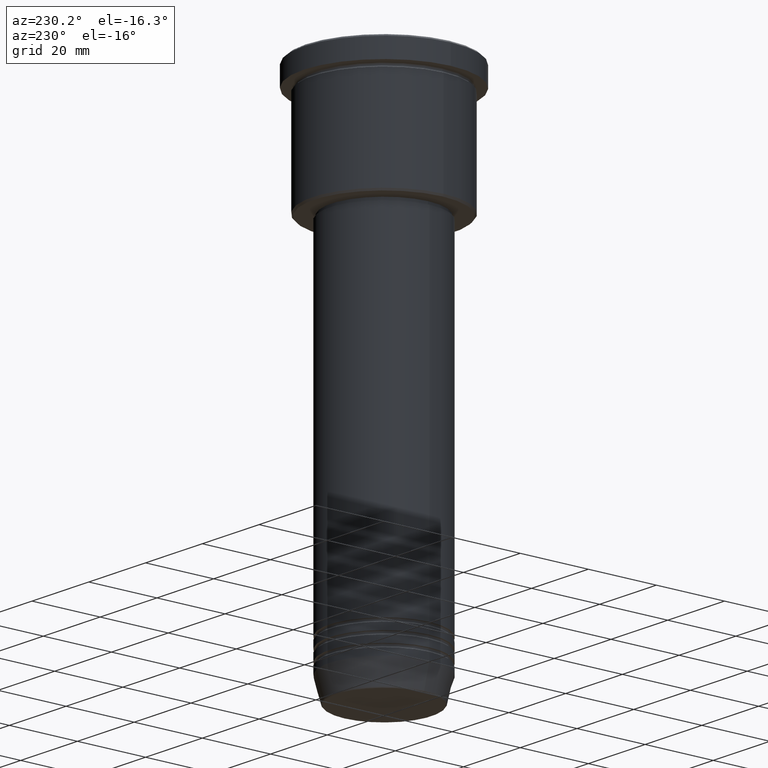
[diagram: clean part render]
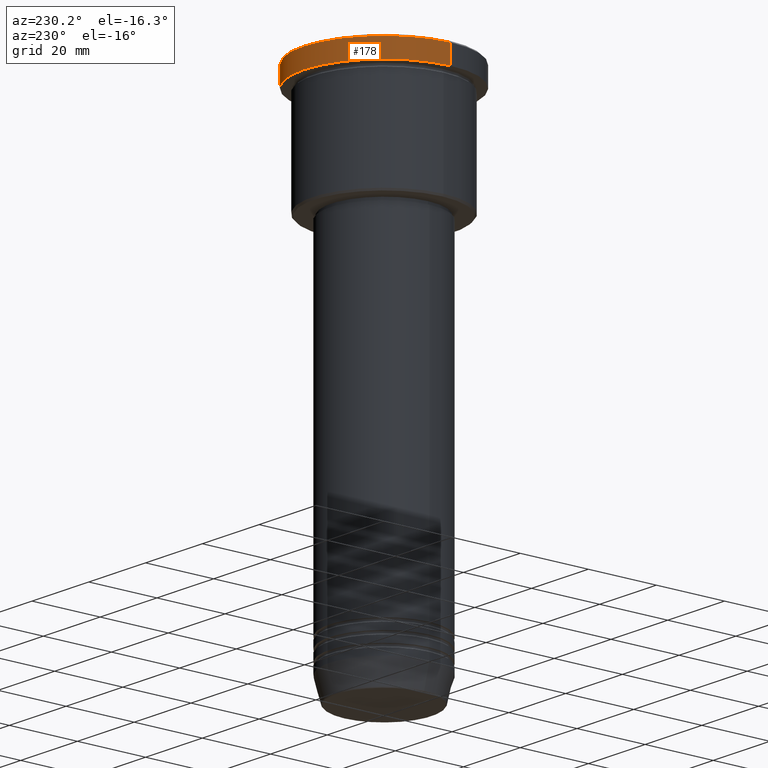
[diagram: same view with one face highlighted and labeled with its STEP entity id]
A machine part, auxiliary view. The second image highlights one B-rep face of the part: STEP entity #178.
In plain terms, the highlighted cylindrical surface (partial cylindrical patch) has radius 23.5 mm, axis along (-0, -0, 1).
Its self-contained STEP definition (entity closure, byte-faithful):
#2 = VERTEX_POINT ( 'NONE', #570 ) ;
#15 = VERTEX_POINT ( 'NONE', #573 ) ;
#59 = DIRECTION ( 'NONE',  ( 1.000000000000000000, 0.000000000000000000, 0.000000000000000000 ) ) ;
#75 = DIRECTION ( 'NONE',  ( -0.000000000000000000, -0.000000000000000000, 1.000000000000000000 ) ) ;
#107 = EDGE_CURVE ( 'NONE', #1039, #151, #1157, .T. ) ;
#138 = EDGE_CURVE ( 'NONE', #15, #2, #794, .T. ) ;
#151 = VERTEX_POINT ( 'NONE', #510 ) ;
#178 = ADVANCED_FACE ( 'NONE', ( #685 ), #421, .T. ) ;
#192 = CARTESIAN_POINT ( 'NONE',  ( 23.50000000000000000, 0.000000000000000000, -5.999999999999994671 ) ) ;
#218 = AXIS2_PLACEMENT_3D ( 'NONE', #1149, #523, #59 ) ;
#289 = ORIENTED_EDGE ( 'NONE', *, *, #925, .T. ) ;
#316 = CIRCLE ( 'NONE', #654, 23.50000000000000000 ) ;
#332 = ORIENTED_EDGE ( 'NONE', *, *, #138, .T. ) ;
#373 = VECTOR ( 'NONE', #867, 1000.000000000000000 ) ;
#402 = EDGE_CURVE ( 'NONE', #2, #151, #316, .T. ) ;
#414 = ORIENTED_EDGE ( 'NONE', *, *, #402, .T. ) ;
#421 = CYLINDRICAL_SURFACE ( 'NONE', #218, 23.50000000000000000 ) ;
#503 = AXIS2_PLACEMENT_3D ( 'NONE', #726, #75, #815 ) ;
#510 = CARTESIAN_POINT ( 'NONE',  ( 23.50000000000000000, 0.000000000000000000, -0.5000000000000143219 ) ) ;
#523 = DIRECTION ( 'NONE',  ( -0.000000000000000000, -0.000000000000000000, 1.000000000000000000 ) ) ;
#570 = CARTESIAN_POINT ( 'NONE',  ( -23.50000000000000000, 2.877919977996280320E-15, -0.5000000000000143219 ) ) ;
#573 = CARTESIAN_POINT ( 'NONE',  ( -23.50000000000000000, 2.877919977996280320E-15, -5.999999999999994671 ) ) ;
#578 = CIRCLE ( 'NONE', #503, 23.50000000000000000 ) ;
#603 = ORIENTED_EDGE ( 'NONE', *, *, #107, .F. ) ;
#654 = AXIS2_PLACEMENT_3D ( 'NONE', #966, #761, #678 ) ;
#678 = DIRECTION ( 'NONE',  ( 1.000000000000000000, 0.000000000000000000, 0.000000000000000000 ) ) ;
#685 = FACE_OUTER_BOUND ( 'NONE', #1091, .T. ) ;
#702 = DIRECTION ( 'NONE',  ( -0.000000000000000000, -0.000000000000000000, 1.000000000000000000 ) ) ;
#708 = CARTESIAN_POINT ( 'NONE',  ( 23.50000000000000000, 0.000000000000000000, 0.000000000000000000 ) ) ;
#726 = CARTESIAN_POINT ( 'NONE',  ( 0.000000000000000000, 0.000000000000000000, -5.999999999999994671 ) ) ;
#761 = DIRECTION ( 'NONE',  ( 0.000000000000000000, 0.000000000000000000, -1.000000000000000000 ) ) ;
#794 = LINE ( 'NONE', #1162, #903 ) ;
#815 = DIRECTION ( 'NONE',  ( 1.000000000000000000, 0.000000000000000000, 0.000000000000000000 ) ) ;
#867 = DIRECTION ( 'NONE',  ( -0.000000000000000000, -0.000000000000000000, 1.000000000000000000 ) ) ;
#903 = VECTOR ( 'NONE', #702, 1000.000000000000000 ) ;
#925 = EDGE_CURVE ( 'NONE', #1039, #15, #578, .T. ) ;
#966 = CARTESIAN_POINT ( 'NONE',  ( 0.000000000000000000, 0.000000000000000000, -0.5000000000000143219 ) ) ;
#1039 = VERTEX_POINT ( 'NONE', #192 ) ;
#1091 = EDGE_LOOP ( 'NONE', ( #289, #332, #414, #603 ) ) ;
#1149 = CARTESIAN_POINT ( 'NONE',  ( 0.000000000000000000, 0.000000000000000000, 0.000000000000000000 ) ) ;
#1157 = LINE ( 'NONE', #708, #373 ) ;
#1162 = CARTESIAN_POINT ( 'NONE',  ( -23.50000000000000000, 2.877919977996280320E-15, 0.000000000000000000 ) ) ;